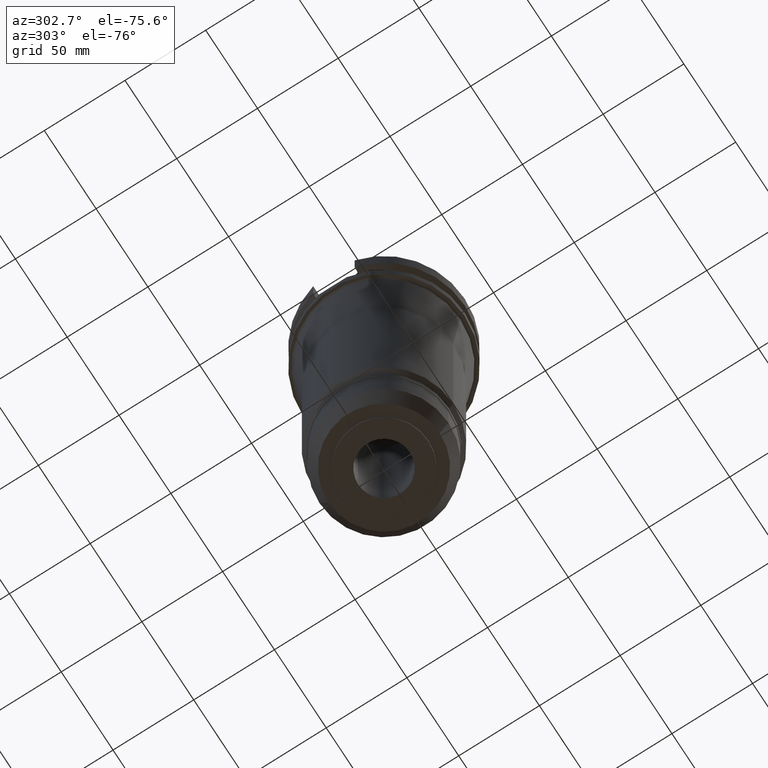
[diagram: clean part render]
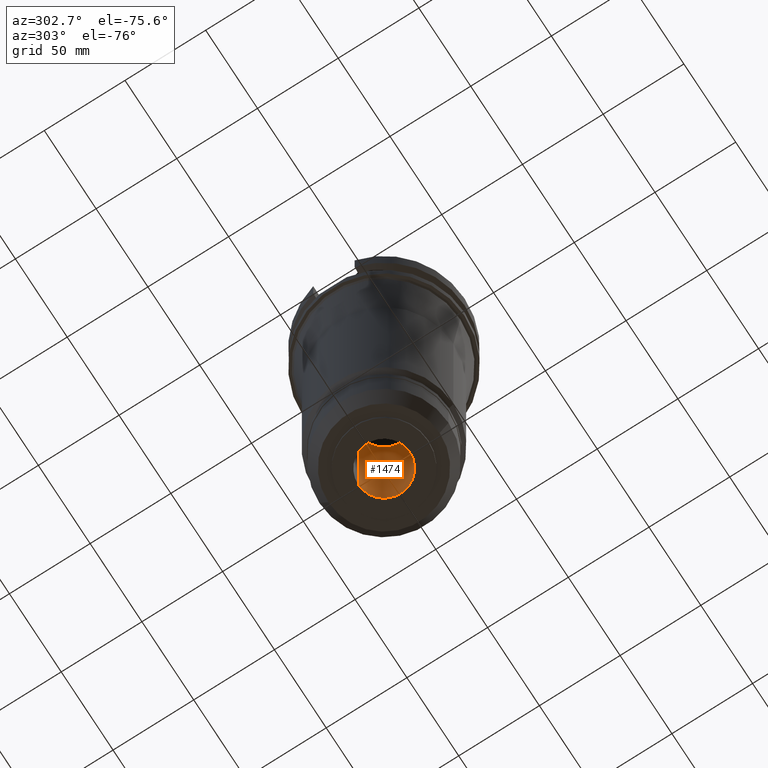
[diagram: same view with one face highlighted and labeled with its STEP entity id]
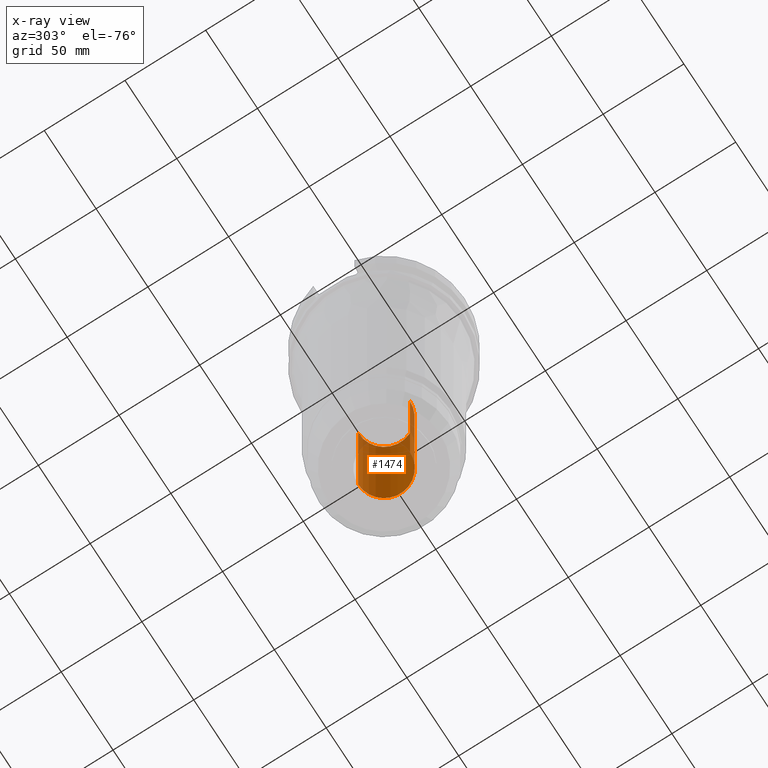
[diagram: x-ray of the same camera — body ghosted, the highlighted face saturated]
A machine part, auxiliary view. The second image highlights one B-rep face of the part: STEP entity #1474.
The next image is the same camera in x-ray: the body ghosted, the highlighted face saturated — about 10% of this face is hidden behind the body in this view.
In plain terms, the highlighted cylindrical surface (edge-blend (fillet) strip) has radius 16 mm, axis along (0, 0, -1).
Its self-contained STEP definition (entity closure, byte-faithful):
#154=CARTESIAN_POINT('',(0.E0,2.688222188808E-14,-1.45E2));
#155=DIRECTION('',(0.E0,0.E0,1.E0));
#156=DIRECTION('',(0.E0,-1.E0,0.E0));
#157=AXIS2_PLACEMENT_3D('',#154,#155,#156);
#186=DIRECTION('',(0.E0,0.E0,1.E0));
#187=VECTOR('',#186,1.074E2);
#188=CARTESIAN_POINT('',(0.E0,1.6E1,-2.524E2));
#189=LINE('',#188,#187);
#193=DIRECTION('',(0.E0,0.E0,1.E0));
#194=VECTOR('',#193,1.074E2);
#195=CARTESIAN_POINT('',(0.E0,-1.6E1,-2.524E2));
#196=LINE('',#195,#194);
#224=CARTESIAN_POINT('',(0.E0,2.688222188808E-14,-2.524E2));
#225=DIRECTION('',(0.E0,0.E0,-1.E0));
#226=DIRECTION('',(0.E0,1.E0,0.E0));
#227=AXIS2_PLACEMENT_3D('',#224,#225,#226);
#1153=CARTESIAN_POINT('',(0.E0,-1.6E1,-1.45E2));
#1154=CARTESIAN_POINT('',(0.E0,1.6E1,-1.45E2));
#1155=VERTEX_POINT('',#1153);
#1156=VERTEX_POINT('',#1154);
#1157=CARTESIAN_POINT('',(0.E0,1.6E1,-2.524E2));
#1158=VERTEX_POINT('',#1157);
#1159=CARTESIAN_POINT('',(0.E0,-1.6E1,-2.524E2));
#1160=VERTEX_POINT('',#1159);
#1460=CARTESIAN_POINT('',(0.E0,2.688222188808E-14,1.1951E2));
#1461=DIRECTION('',(0.E0,0.E0,-1.E0));
#1462=DIRECTION('',(0.E0,-1.E0,0.E0));
#1463=AXIS2_PLACEMENT_3D('',#1460,#1461,#1462);
#1464=CYLINDRICAL_SURFACE('',#1463,1.6E1);
#1466=ORIENTED_EDGE('',*,*,#1465,.T.);
#1467=ORIENTED_EDGE('',*,*,#1449,.F.);
#1469=ORIENTED_EDGE('',*,*,#1468,.F.);
#1471=ORIENTED_EDGE('',*,*,#1470,.F.);
#1472=EDGE_LOOP('',(#1466,#1467,#1469,#1471));
#1473=FACE_OUTER_BOUND('',#1472,.F.);
#158=CIRCLE('',#157,1.6E1);
#228=CIRCLE('',#227,1.6E1);
#1449=EDGE_CURVE('',#1155,#1156,#158,.T.);
#1465=EDGE_CURVE('',#1158,#1156,#189,.T.);
#1468=EDGE_CURVE('',#1160,#1155,#196,.T.);
#1470=EDGE_CURVE('',#1158,#1160,#228,.T.);
#1474=ADVANCED_FACE('',(#1473),#1464,.F.);